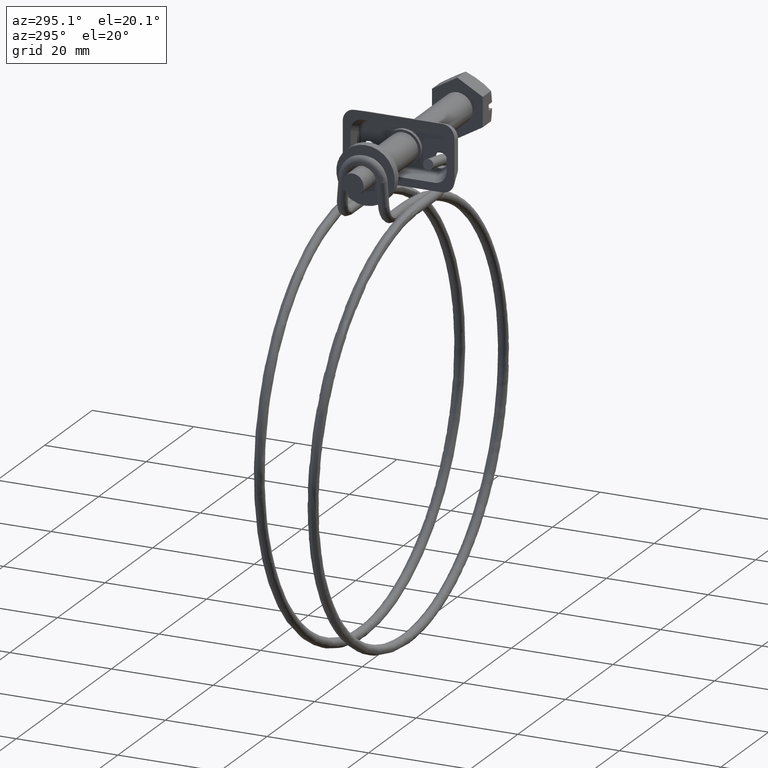
[diagram: clean part render]
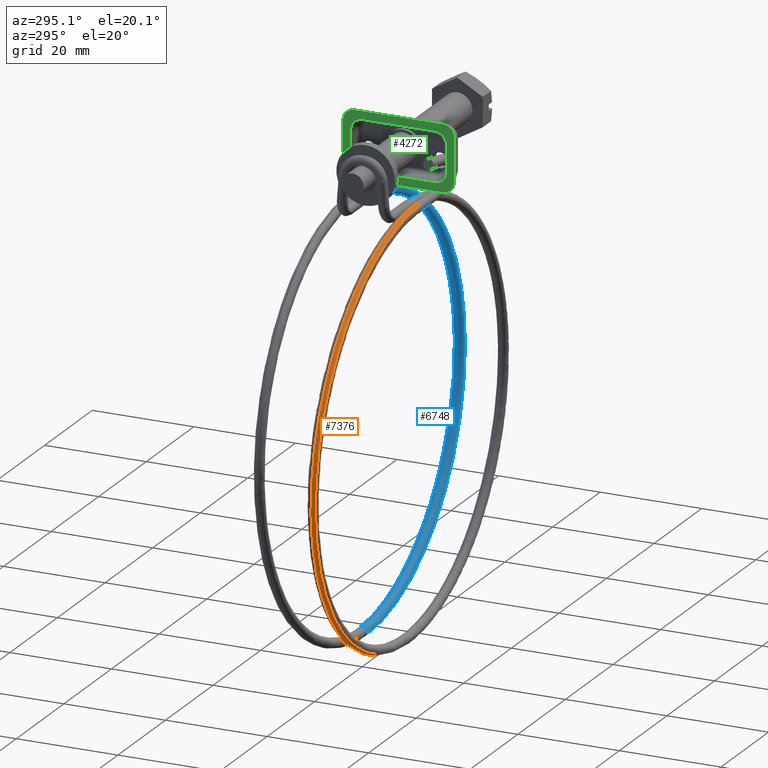
[diagram: same view with three faces highlighted in distinct colors, each labeled with its STEP entity id]
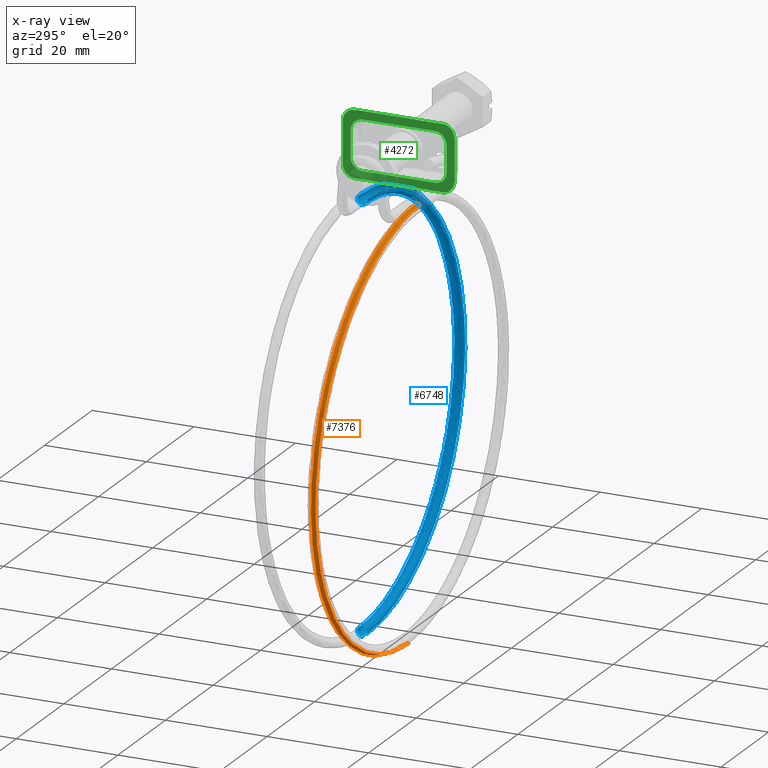
[diagram: x-ray of the same camera — body ghosted, the three highlighted faces saturated]
A machine part, auxiliary view with three faces highlighted in distinct colors.
The next image is the same camera in x-ray (body ghosted, the three faces saturated) — at least one of them is partly hidden behind the body in this view.
Their STEP definitions:

[orange] entity #7376 — the highlighted face is a freeform B-spline surface patch.
#4599=CARTESIAN_POINT('',(-30.849999999999049,-6.358996926632420,-6.851201973787906));
#4600=VERTEX_POINT('',#4599);
#4608=CARTESIAN_POINT('',(-30.849999999999049,-7.071613986342928,-7.202001879862161));
#4609=VERTEX_POINT('',#4608);
#4610=CARTESIAN_POINT('',(-30.849999999999049,-6.358996926632420,-6.851201973787906));
#4611=CARTESIAN_POINT('',(-30.849999999999049,-6.620481900229170,-6.864028822002280));
#4612=CARTESIAN_POINT('',(-30.849999999999049,-6.875076355508851,-6.984420348357491));
#4613=CARTESIAN_POINT('',(-30.849999999999049,-7.057937752888845,-7.186147289623124));
#4614=CARTESIAN_POINT('',(-30.849999999999049,-7.064841796253846,-7.194020395486353));
#4615=CARTESIAN_POINT('',(-30.849999999999049,-7.071613986342928,-7.202001879862161));
#4616=B_SPLINE_CURVE_WITH_KNOTS('',3,(#4610,#4611,#4612,#4613,#4614,#4615),.UNSPECIFIED.,.F.,.U.,(4,2,4),(0.0,0.125000000000000,0.130000310572804),.UNSPECIFIED.);
#4617=EDGE_CURVE('',#4600,#4609,#4616,.T.);
#6125=CARTESIAN_POINT('',(-30.850000000000939,-5.028950649559777,-90.534537033441865));
#6126=VERTEX_POINT('',#6125);
#6138=CARTESIAN_POINT('',(-30.850000000000939,-4.300002000000005,-90.850001000000049));
#6139=VERTEX_POINT('',#6138);
#6140=CARTESIAN_POINT('',(-30.850000000000929,-4.300001999999999,-90.850001000000091));
#6141=CARTESIAN_POINT('',(-30.850000000000929,-4.561801387799146,-90.850001000000091));
#6142=CARTESIAN_POINT('',(-30.850000000000922,-4.821988658763279,-90.742227903609901));
#6143=CARTESIAN_POINT('',(-30.850000000000922,-5.014514046029511,-90.549702516343672));
#6144=CARTESIAN_POINT('',(-30.850000000000922,-5.021795540256347,-90.542177129141734));
#6145=CARTESIAN_POINT('',(-30.850000000000939,-5.028950649559777,-90.534537033441865));
#6146=B_SPLINE_CURVE_WITH_KNOTS('',3,(#6140,#6141,#6142,#6143,#6144,#6145),.UNSPECIFIED.,.F.,.U.,(4,2,4),(0.0,0.125000000000000,0.130000310572690),.UNSPECIFIED.);
#6147=EDGE_CURVE('',#6139,#6126,#6146,.T.);
#7265=CARTESIAN_POINT('',(-30.850000000000939,-5.028950649559777,-90.534537033441865));
#7266=CARTESIAN_POINT('',(-36.305318899030567,-5.028950803611579,-90.534537759588233));
#7267=CARTESIAN_POINT('',(-41.756597362550259,-5.055535354850994,-89.449960368318614));
#7268=CARTESIAN_POINT('',(-51.834657833151638,-5.157864482385008,-85.275339194153190));
#7269=CARTESIAN_POINT('',(-56.456585399139357,-5.233567909034217,-82.186940656105079));
#7270=CARTESIAN_POINT('',(-64.169706932515993,-5.422639004424996,-74.473592392381192));
#7271=CARTESIAN_POINT('',(-67.257870811316991,-5.535932286126398,-69.851677360830465));
#7272=CARTESIAN_POINT('',(-71.432071037497721,-5.782958161060649,-59.774004728269247));
#7273=CARTESIAN_POINT('',(-72.516468437387118,-5.916593645017086,-54.322208798726869));
#7274=CARTESIAN_POINT('',(-72.516468437387118,-6.183969693214051,-43.414330082766533));
#7275=CARTESIAN_POINT('',(-71.432071037513026,-6.317605177179821,-37.962534153169202));
#7276=CARTESIAN_POINT('',(-67.257870811299398,-6.564631052095453,-27.884861520715479));
#7277=CARTESIAN_POINT('',(-64.169706932496084,-6.677924333818284,-23.262946489112501));
#7278=CARTESIAN_POINT('',(-56.456585399157028,-6.866995429184750,-15.549598225388870));
#7279=CARTESIAN_POINT('',(-51.834657833159163,-6.942698855849457,-12.461199687324241));
#7280=CARTESIAN_POINT('',(-41.756597362537647,-7.045027983376782,-8.286578513191776));
#7281=CARTESIAN_POINT('',(-36.305318865696947,-7.071802026515540,-7.202034668699311));
#7282=CARTESIAN_POINT('',(-30.849999999999049,-7.071613986342928,-7.202001879862161));
#7283=B_SPLINE_CURVE_WITH_KNOTS('',3,(#7265,#7266,#7267,#7268,#7269,#7270,#7271,#7272,#7273,#7274,#7275,#7276,#7277,#7278,#7279,#7280,#7281,#7282),.UNSPECIFIED.,.F.,.U.,(4,2,2,2,2,2,2,2,4),(0.746796299225829,0.773394937385420,0.799993575545010,0.826592213704601,0.853190851864191,0.879789490023781,0.906388128183372,0.932986766342962,0.959585404502553),.UNSPECIFIED.);
#7284=EDGE_CURVE('',#6126,#4609,#7283,.T.);
#7290=CARTESIAN_POINT('',(-30.850000000000950,-4.300002000000009,-90.850001000000006));
#7291=CARTESIAN_POINT('',(-36.348961320971647,-4.300002827424925,-90.850001000018310));
#7292=CARTESIAN_POINT('',(-41.843849336140451,-4.326800065912181,-89.756746556423352));
#7293=CARTESIAN_POINT('',(-52.002523341114752,-4.429947715293605,-85.548732948413146));
#7294=CARTESIAN_POINT('',(-56.661415709662897,-4.506256634255218,-82.435632733652142));
#7295=CARTESIAN_POINT('',(-64.436214496779613,-4.696839618940733,-74.660605403252646));
#7296=CARTESIAN_POINT('',(-67.549067002914100,-4.811038692889240,-70.001737652873658));
#7297=CARTESIAN_POINT('',(-71.756635370281899,-5.060039268083110,-59.843505108086852));
#7298=CARTESIAN_POINT('',(-72.849699711466400,-5.194742889161515,-54.348133434688897));
#7299=CARTESIAN_POINT('',(-72.849699711466400,-5.464256037473009,-43.353069539097497));
#7300=CARTESIAN_POINT('',(-71.756635370317994,-5.598959658559590,-37.857697865623848));
#7301=CARTESIAN_POINT('',(-67.549067002875688,-5.847960233737171,-27.699465320986050));
#7302=CARTESIAN_POINT('',(-64.436214496722599,-5.962159307699600,-23.040597570552819));
#7303=CARTESIAN_POINT('',(-56.661415709717687,-6.152742292373481,-15.265570240116030));
#7304=CARTESIAN_POINT('',(-52.002523341102901,-6.229051211344400,-12.152470025373731));
#7305=CARTESIAN_POINT('',(-41.843849336147187,-6.332198860718850,-7.944456417363570));
#7306=CARTESIAN_POINT('',(-36.348961287279543,-6.359186337793259,-6.851235907918861));
#7307=CARTESIAN_POINT('',(-30.849999999999049,-6.358996926632420,-6.851201973787906));
#7308=B_SPLINE_CURVE_WITH_KNOTS('',3,(#7290,#7291,#7292,#7293,#7294,#7295,#7296,#7297,#7298,#7299,#7300,#7301,#7302,#7303,#7304,#7305,#7306,#7307),.UNSPECIFIED.,.F.,.U.,(4,2,2,2,2,2,2,2,4),(0.746796299225829,0.773394937385420,0.799993575545010,0.826592213704601,0.853190851864191,0.879789490023781,0.906388128183372,0.932986766342962,0.959585404502553),.UNSPECIFIED.);
#7309=EDGE_CURVE('',#6139,#4600,#7308,.T.);
#7317=CARTESIAN_POINT('',(-30.190123083374662,-4.295917825471815,-90.850001000007396));
#7318=CARTESIAN_POINT('',(-30.190210627648572,-4.570927623140562,-90.851170057773999));
#7319=CARTESIAN_POINT('',(-30.192168507968280,-4.844580443696140,-90.733262335891624));
#7320=CARTESIAN_POINT('',(-30.195409648490120,-5.031741139738297,-90.531557303955296));
#7321=CARTESIAN_POINT('',(-30.410078927276800,-4.295938438262885,-90.849161378541751));
#7322=CARTESIAN_POINT('',(-30.410137290548040,-4.570948233194306,-90.850330547911895));
#7323=CARTESIAN_POINT('',(-30.411442553532130,-4.844600992585777,-90.732425317558437));
#7324=CARTESIAN_POINT('',(-30.413603329503310,-5.031761587377221,-90.530724409985496));
#7325=CARTESIAN_POINT('',(-36.128689903765938,-4.294845941254329,-90.893764301846119));
#7326=CARTESIAN_POINT('',(-36.127989593459432,-4.569855881087380,-90.894927558063216));
#7327=CARTESIAN_POINT('',(-36.112327532531381,-4.843511882523873,-90.776889969415791));
#7328=CARTESIAN_POINT('',(-36.086400033366587,-5.030677844366587,-90.574969946458282));
#7329=CARTESIAN_POINT('',(-47.341200508019178,-4.349521420811046,-88.663180078317751));
#7330=CARTESIAN_POINT('',(-47.339012673077882,-4.624524106552896,-88.664639274775311));
#7331=CARTESIAN_POINT('',(-47.290082929454613,-4.898017872408857,-88.553220373321992));
#7332=CARTESIAN_POINT('',(-47.209082996346453,-5.084915263970175,-88.362257152740895));
#7333=CARTESIAN_POINT('',(-61.322118602506869,-4.578518036736755,-79.321043388222506));
#7334=CARTESIAN_POINT('',(-61.318076477672413,-4.853490348442129,-79.323741723787393));
#7335=CARTESIAN_POINT('',(-61.227676544824092,-5.126304815990314,-79.240035450020031));
#7336=CARTESIAN_POINT('',(-61.078025474319773,-5.312077674454017,-79.094948637529953));
#7337=CARTESIAN_POINT('',(-70.663450924798724,-4.921197938607599,-65.341064800875060));
#7338=CARTESIAN_POINT('',(-70.658170344853460,-5.196124815136104,-65.345616710933527));
#7339=CARTESIAN_POINT('',(-70.540073034035970,-5.467923149483482,-65.303364634686716));
#7340=CARTESIAN_POINT('',(-70.344570798262353,-5.652013867073378,-65.226902486765496));
#7341=CARTESIAN_POINT('',(-73.942950576602541,-5.325417712907129,-48.850506643159022));
#7342=CARTESIAN_POINT('',(-73.937235326210981,-5.600291009772195,-48.857244390287107));
#7343=CARTESIAN_POINT('',(-73.809416846387734,-5.870891063945456,-48.863877376377410));
#7344=CARTESIAN_POINT('',(-73.597821862488829,-6.052998108485967,-48.868341194634723));
#7345=CARTESIAN_POINT('',(-70.663440175871003,-5.729637104398208,-32.359964102779387));
#7346=CARTESIAN_POINT('',(-70.658159597194839,-6.004456821649943,-32.368887684937619));
#7347=CARTESIAN_POINT('',(-70.540062314834771,-6.273858596764184,-32.424405687906301));
#7348=CARTESIAN_POINT('',(-70.344560126148252,-6.453981970101158,-32.509795397124499));
#7349=CARTESIAN_POINT('',(-61.322120676074690,-6.072330846495651,-18.379956792650091));
#7350=CARTESIAN_POINT('',(-61.318078550996461,-6.347105127613034,-18.390733953254070));
#7351=CARTESIAN_POINT('',(-61.227678612661492,-6.615490748194239,-18.487706234168570));
#7352=CARTESIAN_POINT('',(-61.078027533073758,-6.793931945142680,-18.641720740726939));
#7353=CARTESIAN_POINT('',(-47.341199814241143,-6.301248823418857,-9.037812839550099));
#7354=CARTESIAN_POINT('',(-47.339011979382100,-6.575992735667293,-9.049829138949024));
#7355=CARTESIAN_POINT('',(-47.290082237566033,-6.843699173122807,-9.174514087721983));
#7356=CARTESIAN_POINT('',(-47.209082307478582,-7.021016028846021,-9.374405070878970));
#7357=CARTESIAN_POINT('',(-36.128690015306702,-6.356162432013099,-6.807269031501098));
#7358=CARTESIAN_POINT('',(-36.127989704981772,-6.630899074552404,-6.819581269713790));
#7359=CARTESIAN_POINT('',(-36.112327643803063,-6.898442928290504,-6.950884730276371));
#7360=CARTESIAN_POINT('',(-36.086400144214267,-7.075490633783787,-7.161732219430775));
#7361=CARTESIAN_POINT('',(-30.410078930021669,-6.354881731451876,-6.851838729321413));
#7362=CARTESIAN_POINT('',(-30.410137293293449,-6.629618531234323,-6.864145055668919));
#7363=CARTESIAN_POINT('',(-30.411442556265751,-6.897165902119824,-6.995316300317407));
#7364=CARTESIAN_POINT('',(-30.413603332218688,-7.074219432949702,-7.205944914521849));
#7365=CARTESIAN_POINT('',(-30.190123087415270,-6.354895026897557,-6.850997802611093));
#7366=CARTESIAN_POINT('',(-30.190210631689979,-6.629631824422474,-6.863304240613876));
#7367=CARTESIAN_POINT('',(-30.192168511992371,-6.897179144839361,-6.994477982366891));
#7368=CARTESIAN_POINT('',(-30.195409652487349,-7.074232592235900,-7.205110730347303));
#7369=B_SPLINE_SURFACE_WITH_KNOTS('',3,3,((#7317,#7321,#7325,#7329,#7333,#7337,#7341,#7345,#7349,#7353,#7357,#7361,#7365),(#7318,#7322,#7326,#7330,#7334,#7338,#7342,#7346,#7350,#7354,#7358,#7362,#7366),(#7319,#7323,#7327,#7331,#7335,#7339,#7343,#7347,#7351,#7355,#7359,#7363,#7367),(#7320,#7324,#7328,#7332,#7336,#7340,#7344,#7348,#7352,#7356,#7360,#7364,#7368)),.UNSPECIFIED.,.F.,.F.,.U.,(4,4),(4,1,1,1,1,1,1,1,1,1,4),(0.0,0.825542999931788),(0.0,0.659872351504707,17.156681507852930,33.653490664200604,50.150299820548831,66.647108976896490,83.143918133244043,99.640727289592320,116.137536445939900,132.634345602288190,133.294217953793210),.UNSPECIFIED.);
#7370=ORIENTED_EDGE('',*,*,#4617,.F.);
#7371=ORIENTED_EDGE('',*,*,#7309,.F.);
#7372=ORIENTED_EDGE('',*,*,#6147,.T.);
#7373=ORIENTED_EDGE('',*,*,#7284,.T.);
#7374=EDGE_LOOP('',(#7370,#7371,#7372,#7373));
#7375=FACE_OUTER_BOUND('',#7374,.T.);
#7376=ADVANCED_FACE('',(#7375),#7369,.T.);

[blue] entity #6748 — the highlighted face is a freeform B-spline surface patch.
#5491=CARTESIAN_POINT('',(-30.849997853205629,5.025377348391642,-8.538354545748593));
#5492=VERTEX_POINT('',#5491);
#5493=CARTESIAN_POINT('',(-30.849995428571869,4.300002000000000,-8.850001000000443));
#5494=VERTEX_POINT('',#5493);
#5495=CARTESIAN_POINT('',(-30.849997853205625,5.025377348391642,-8.538354545748593));
#5496=CARTESIAN_POINT('',(-30.849995428571873,4.729636746951607,-8.850001000000443));
#5497=CARTESIAN_POINT('',(-30.849995428571869,4.300002000000000,-8.850001000000443));
#5505=(BOUNDED_CURVE()B_SPLINE_CURVE(2,(#5495,#5496,#5497),.UNSPECIFIED.,.F.,.U.)B_SPLINE_CURVE_WITH_KNOTS((3,3),(0.371049312379004,0.500000000000000),.UNSPECIFIED.)CURVE()GEOMETRIC_REPRESENTATION_ITEM()RATIONAL_B_SPLINE_CURVE((0.853699677237795,0.848924872137914,1.0))REPRESENTATION_ITEM(''));
#5506=EDGE_CURVE('',#5492,#5494,#5505,.T.);
#5508=CARTESIAN_POINT('',(-30.849995273908782,3.364492662609556,-7.496699033329747));
#5509=VERTEX_POINT('',#5508);
#5510=CARTESIAN_POINT('',(-30.849995428571869,4.300002000000000,-8.850001000000443));
#5511=CARTESIAN_POINT('',(-30.849995428571880,3.300001999999999,-8.850001000000443));
#5512=CARTESIAN_POINT('',(-30.849995314286151,3.300002000000000,-7.850001000000450));
#5513=CARTESIAN_POINT('',(-30.849995293424779,3.300002000000000,-7.667464052305784));
#5514=CARTESIAN_POINT('',(-30.849995273908782,3.364492662609556,-7.496699033329747));
#5522=(BOUNDED_CURVE()B_SPLINE_CURVE(2,(#5510,#5511,#5512,#5513,#5514),.UNSPECIFIED.,.F.,.U.)B_SPLINE_CURVE_WITH_KNOTS((3,2,3),(0.500000000000000,0.750000000000000,0.810000000003567),.UNSPECIFIED.)CURVE()GEOMETRIC_REPRESENTATION_ITEM()RATIONAL_B_SPLINE_CURVE((1.0,0.707106781186548,1.0,0.929705627480592,0.893152553772506))REPRESENTATION_ITEM(''));
#5523=EDGE_CURVE('',#5494,#5509,#5522,.T.);
#5525=CARTESIAN_POINT('',(-30.850010984965220,4.300002000001033,-6.850001000004548));
#5526=VERTEX_POINT('',#5525);
#5540=CARTESIAN_POINT('',(-30.850008848260462,4.988355548750894,-7.124625654459109));
#5541=VERTEX_POINT('',#5540);
#5542=CARTESIAN_POINT('',(-30.850010984965220,4.300002000001033,-6.850001000004548));
#5543=CARTESIAN_POINT('',(-30.850010984965223,4.698960725432694,-6.850001000004549));
#5544=CARTESIAN_POINT('',(-30.850008848260465,4.988355548750894,-7.124625654459109));
#5552=(BOUNDED_CURVE()B_SPLINE_CURVE(2,(#5542,#5543,#5544),.UNSPECIFIED.,.F.,.U.)B_SPLINE_CURVE_WITH_KNOTS((3,3),(0.0,0.121049313003398),.UNSPECIFIED.)CURVE()GEOMETRIC_REPRESENTATION_ITEM()RATIONAL_B_SPLINE_CURVE((1.0,0.858181908317110,0.853699677191555))REPRESENTATION_ITEM(''));
#5553=EDGE_CURVE('',#5526,#5541,#5552,.T.);
#5650=CARTESIAN_POINT('',(-30.850008848260455,4.988355548750895,-7.124625654459109));
#5651=CARTESIAN_POINT('',(-30.850006548552091,5.300002000000737,-7.420366255502331));
#5652=CARTESIAN_POINT('',(-30.850003206768552,5.300002000000516,-7.850001000002496));
#5653=CARTESIAN_POINT('',(-30.850000103589139,5.300002000000310,-8.248959723035357));
#5654=CARTESIAN_POINT('',(-30.849997853205625,5.025377348391642,-8.538354545748593));
#5662=(BOUNDED_CURVE()B_SPLINE_CURVE(2,(#5650,#5651,#5652,#5653,#5654),.UNSPECIFIED.,.F.,.U.)B_SPLINE_CURVE_WITH_KNOTS((3,2,3),(0.121049313003398,0.250000000000000,0.371049312379004),.UNSPECIFIED.)CURVE()GEOMETRIC_REPRESENTATION_ITEM()RATIONAL_B_SPLINE_CURVE((0.853699677191554,0.848924872869437,1.0,0.858181909048634,0.853699677237795))REPRESENTATION_ITEM(''));
#5663=EDGE_CURVE('',#5541,#5492,#5662,.T.);
#6610=CARTESIAN_POINT('',(-36.602914556231241,3.373633376353292,-89.825627306813530));
#6611=CARTESIAN_POINT('',(10.827624680924400,3.373633376353290,-96.484801654612525));
#6612=CARTESIAN_POINT('',(10.526688933473828,3.373633376353292,-48.590020174814015));
#6613=CARTESIAN_POINT('',(10.228825920843519,3.373633376353291,-1.184273194934970));
#6614=CARTESIAN_POINT('',(-36.701433258188565,3.373633376353291,-7.888327377552923));
#6615=CARTESIAN_POINT('',(-36.601227300736724,3.369050320365804,-89.813609685145096));
#6616=CARTESIAN_POINT('',(10.815401172204753,3.369050320365806,-96.470830983164305));
#6617=CARTESIAN_POINT('',(10.514553685319919,3.369050320365804,-48.590096423830310));
#6618=CARTESIAN_POINT('',(10.216778032061939,3.369050320365806,-1.198252936916770));
#6619=CARTESIAN_POINT('',(-36.699717108431912,3.369050320365805,-7.900340907079344));
#6620=CARTESIAN_POINT('',(-36.575807109877324,3.300002000002066,-89.632552200087517));
#6621=CARTESIAN_POINT('',(10.631241792884964,3.300002000002066,-96.260348850611521));
#6622=CARTESIAN_POINT('',(10.331724039661534,3.300002000002066,-48.591245191490856));
#6623=CARTESIAN_POINT('',(10.035264542685207,3.300002000002066,-1.408871726125852));
#6624=CARTESIAN_POINT('',(-36.673861596626494,3.300002000002066,-8.081336739926369));
#6625=CARTESIAN_POINT('',(-36.550428116004603,3.300002000002066,-89.451788144093427));
#6626=CARTESIAN_POINT('',(10.447380869683645,3.300002000002066,-96.050207833892884));
#6627=CARTESIAN_POINT('',(10.149190695101611,3.300002000002066,-48.592392097412173));
#6628=CARTESIAN_POINT('',(9.854045221390987,3.300002000002066,-1.619149178029515));
#6629=CARTESIAN_POINT('',(-36.648047987306448,3.300002000002066,-8.262039243625944));
#6630=CARTESIAN_POINT('',(-36.411393283906939,3.300002000002066,-88.461500652774092));
#6631=CARTESIAN_POINT('',(9.440127677740140,3.300002000002066,-94.898983276968679));
#6632=CARTESIAN_POINT('',(9.149210434245472,3.300002000002066,-48.598675241377734));
#6633=CARTESIAN_POINT('',(8.861263630625352,3.300002000002066,-2.771121173687345));
#6634=CARTESIAN_POINT('',(-36.506632182738002,3.300002000002065,-9.251989530366775));
#6635=CARTESIAN_POINT('',(-36.411393283906932,4.300002000002065,-88.461500652774077));
#6636=CARTESIAN_POINT('',(9.440127677740140,4.300002000002064,-94.898983276968664));
#6637=CARTESIAN_POINT('',(9.149210434245472,4.300002000002065,-48.598675241377727));
#6638=CARTESIAN_POINT('',(8.861263630625352,4.300002000002066,-2.771121173687343));
#6639=CARTESIAN_POINT('',(-36.506632182737995,4.300002000002064,-9.251989530366776));
#6640=CARTESIAN_POINT('',(-36.411393283906939,5.300002000002064,-88.461500652774092));
#6641=CARTESIAN_POINT('',(9.440127677740140,5.300002000002064,-94.898983276968679));
#6642=CARTESIAN_POINT('',(9.149210434245472,5.300002000002064,-48.598675241377734));
#6643=CARTESIAN_POINT('',(8.861263630625352,5.300002000002065,-2.771121173687345));
#6644=CARTESIAN_POINT('',(-36.506632182738002,5.300002000002063,-9.251989530366775));
#6645=CARTESIAN_POINT('',(-36.550428116004603,5.300002000002065,-89.451788144093427));
#6646=CARTESIAN_POINT('',(10.447380869683645,5.300002000002065,-96.050207833892884));
#6647=CARTESIAN_POINT('',(10.149190695101611,5.300002000002065,-48.592392097412173));
#6648=CARTESIAN_POINT('',(9.854045221390987,5.300002000002066,-1.619149178029515));
#6649=CARTESIAN_POINT('',(-36.648047987306448,5.300002000002065,-8.262039243625944));
#6650=CARTESIAN_POINT('',(-36.689462948102275,5.300002000002065,-90.442075635412778));
#6651=CARTESIAN_POINT('',(11.454634061627150,5.300002000002064,-97.201432390817104));
#6652=CARTESIAN_POINT('',(11.149170955957747,5.300002000002065,-48.586108953446619));
#6653=CARTESIAN_POINT('',(10.846826812156619,5.300002000002067,-0.467177182371702));
#6654=CARTESIAN_POINT('',(-36.789463791874908,5.300002000002064,-7.272088956885114));
#6655=CARTESIAN_POINT('',(-36.689462948102260,4.288600795465911,-90.442075635412778));
#6656=CARTESIAN_POINT('',(11.454634061627150,4.288600795465911,-97.201432390817104));
#6657=CARTESIAN_POINT('',(11.149170955957750,4.288600795465911,-48.586108953446612));
#6658=CARTESIAN_POINT('',(10.846826812156619,4.288600795465912,-0.467177182371702));
#6659=CARTESIAN_POINT('',(-36.789463791874894,4.288600795465909,-7.272088956885111));
#6660=CARTESIAN_POINT('',(-36.689462948102275,4.277306769915183,-90.442075635412792));
#6661=CARTESIAN_POINT('',(11.454634061627150,4.277306769915183,-97.201432390817089));
#6662=CARTESIAN_POINT('',(11.149170955957750,4.277306769915183,-48.586108953446626));
#6663=CARTESIAN_POINT('',(10.846826812156619,4.277306769915182,-0.467177182371701));
#6664=CARTESIAN_POINT('',(-36.789463791874887,4.277306769915181,-7.272088956885110));
#6672=(BOUNDED_SURFACE()B_SPLINE_SURFACE(2,2,((#6610,#6615,#6620,#6625,#6630,#6635,#6640,#6645,#6650,#6655,#6660),(#6611,#6616,#6621,#6626,#6631,#6636,#6641,#6646,#6651,#6656,#6661),(#6612,#6617,#6622,#6627,#6632,#6637,#6642,#6647,#6652,#6657,#6662),(#6613,#6618,#6623,#6628,#6633,#6638,#6643,#6648,#6653,#6658,#6663),(#6614,#6619,#6624,#6629,#6634,#6639,#6644,#6649,#6654,#6659,#6664)),.UNSPECIFIED.,.F.,.F.,.U.)B_SPLINE_SURFACE_WITH_KNOTS((3,2,3),(3,1,2,2,2,1,3),(0.0,76.873848138523414,153.232738523935890),(0.0,0.026922510425145,0.424567530303319,2.081421779795713,3.738276029288106,5.395130278780499,5.421971722357781),.UNSPECIFIED.)GEOMETRIC_REPRESENTATION_ITEM()RATIONAL_B_SPLINE_SURFACE(((0.888202910457924,0.890677732117389,0.929705627484771,1.0,0.707106781186548,1.0,0.707106781186548,1.0,0.707106781186548,1.004744941692583,1.009489883385166),(0.580651670974443,0.582269555035632,0.607783559091307,0.653737636003782,0.462262315535137,0.653737636003782,0.462262315535137,0.653737636003782,0.462262315535137,0.656839582968867,0.659941529933952),(0.888202910457924,0.890677732117389,0.929705627484771,1.0,0.707106781186548,1.0,0.707106781186548,1.0,0.707106781186548,1.004744941692583,1.009489883385166),(0.582711876090824,0.584335500552303,0.609940030622666,0.656057156793597,0.463902464414718,0.656057156793597,0.463902464414718,0.656057156793597,0.463902464414718,0.659170109749584,0.662283062705572),(0.884110101772981,0.886573519538737,0.925421575696820,0.995392034143602,0.703848457282012,0.995392034143602,0.703848457282012,0.995392034143602,0.703848457282012,1.000115111306875,1.004838188470148)))REPRESENTATION_ITEM('')SURFACE());
#6673=ORIENTED_EDGE('',*,*,#5523,.F.);
#6674=ORIENTED_EDGE('',*,*,#5506,.F.);
#6675=ORIENTED_EDGE('',*,*,#5663,.F.);
#6676=ORIENTED_EDGE('',*,*,#5553,.F.);
#6677=CARTESIAN_POINT('',(-30.850012773898129,4.300002000002066,-90.850000999996155));
#6678=VERTEX_POINT('',#6677);
#6679=CARTESIAN_POINT('',(-30.850012773898129,4.300002000002066,-90.850000999996155));
#6680=CARTESIAN_POINT('',(11.414726396834274,4.300002000002065,-90.850013854414200));
#6681=CARTESIAN_POINT('',(11.149170955957750,4.300002000002065,-48.586108953446612));
#6682=CARTESIAN_POINT('',(10.886931736158626,4.300002000002064,-6.849990083838111));
#6683=CARTESIAN_POINT('',(-30.850010984965227,4.300002000001032,-6.850001000004548));
#6691=(BOUNDED_CURVE()B_SPLINE_CURVE(2,(#6679,#6680,#6681,#6682,#6683),.UNSPECIFIED.,.F.,.U.)B_SPLINE_CURVE_WITH_KNOTS((3,2,3),(-3.821089477175030,-2.0,-0.194543482262195),.UNSPECIFIED.)CURVE()GEOMETRIC_REPRESENTATION_ITEM()RATIONAL_B_SPLINE_CURVE((0.943591771129856,0.684712626292369,1.0,0.687419179037864,0.939189438601650))REPRESENTATION_ITEM(''));
#6692=EDGE_CURVE('',#6678,#5526,#6691,.T.);
#6693=ORIENTED_EDGE('',*,*,#6692,.F.);
#6694=CARTESIAN_POINT('',(-30.849999999999049,5.028950649561814,-90.534537033441850));
#6695=VERTEX_POINT('',#6694);
#6696=CARTESIAN_POINT('',(-30.850012773898129,4.300002000002066,-90.850000999996155));
#6697=CARTESIAN_POINT('',(-30.850008909874511,4.561801387801219,-90.850000999997320));
#6698=CARTESIAN_POINT('',(-30.850004381255260,4.821988658765351,-90.742227903608480));
#6699=CARTESIAN_POINT('',(-30.850000309943830,5.014514046031563,-90.549702516343501));
#6700=CARTESIAN_POINT('',(-30.850000154405102,5.021795540258381,-90.542177129141649));
#6701=CARTESIAN_POINT('',(-30.849999999999049,5.028950649561814,-90.534537033441850));
#6702=B_SPLINE_CURVE_WITH_KNOTS('',3,(#6696,#6697,#6698,#6699,#6700,#6701),.UNSPECIFIED.,.F.,.U.,(4,2,4),(0.0,0.125000000000000,0.130000310572678),.UNSPECIFIED.);
#6703=EDGE_CURVE('',#6678,#6695,#6702,.T.);
#6704=ORIENTED_EDGE('',*,*,#6703,.T.);
#6705=CARTESIAN_POINT('',(-30.849999999999049,4.300002000002067,-88.850000999999992));
#6706=VERTEX_POINT('',#6705);
#6707=CARTESIAN_POINT('',(-30.849999999999049,5.028950649561814,-90.534537033441850));
#6708=CARTESIAN_POINT('',(-30.849999999999049,5.200678828488588,-90.351168804465871));
#6709=CARTESIAN_POINT('',(-30.849999999999049,5.300002000002070,-90.101327761825345));
#6710=CARTESIAN_POINT('',(-30.849999999999049,5.300002000002070,-89.588201612200891));
#6711=CARTESIAN_POINT('',(-30.849999999999049,5.192228903611880,-89.328014341236795));
#6712=CARTESIAN_POINT('',(-30.849999999999049,4.821988658765351,-88.957774096390210));
#6713=CARTESIAN_POINT('',(-30.849999999999049,4.561801387801220,-88.850000999999992));
#6714=CARTESIAN_POINT('',(-30.849999999999049,4.300002000002067,-88.850000999999992));
#6715=B_SPLINE_CURVE_WITH_KNOTS('',3,(#6707,#6708,#6709,#6710,#6711,#6712,#6713,#6714),.UNSPECIFIED.,.F.,.U.,(4,2,2,4),(0.130000310572678,0.250000000000000,0.375000000000000,0.500000000000000),.UNSPECIFIED.);
#6716=EDGE_CURVE('',#6695,#6706,#6715,.T.);
#6717=ORIENTED_EDGE('',*,*,#6716,.T.);
#6718=CARTESIAN_POINT('',(-30.849999999864480,3.364945210154583,-90.203131635906203));
#6719=VERTEX_POINT('',#6718);
#6720=CARTESIAN_POINT('',(-30.849999999999049,4.300002000002067,-88.850000999999992));
#6721=CARTESIAN_POINT('',(-30.849999999986871,4.038161661961732,-88.850016503426176));
#6722=CARTESIAN_POINT('',(-30.849999999967519,3.777909289248898,-88.957814246805668));
#6723=CARTESIAN_POINT('',(-30.849999999925359,3.407527296421545,-89.328108156277750));
#6724=CARTESIAN_POINT('',(-30.849999999902831,3.299678426659591,-89.588324114420274));
#6725=CARTESIAN_POINT('',(-30.849999999877092,3.299591888974549,-89.970530271639163));
#6726=CARTESIAN_POINT('',(-30.849999999870072,3.322352722698206,-90.090572399677228));
#6727=CARTESIAN_POINT('',(-30.849999999864480,3.364945210154583,-90.203131635906203));
#6728=B_SPLINE_CURVE_WITH_KNOTS('',3,(#6720,#6721,#6722,#6723,#6724,#6725,#6726,#6727),.UNSPECIFIED.,.F.,.U.,(4,2,2,4),(0.500000000000000,0.625000000000000,0.750000000000000,0.807474354682574),.UNSPECIFIED.);
#6729=EDGE_CURVE('',#6706,#6719,#6728,.T.);
#6730=ORIENTED_EDGE('',*,*,#6729,.T.);
#6731=CARTESIAN_POINT('',(-30.849999999864476,3.364945210154583,-90.203131635906203));
#6732=CARTESIAN_POINT('',(10.763952140154993,3.364945210141570,-90.203131635774767));
#6733=CARTESIAN_POINT('',(10.502485687883389,3.364717514658453,-48.590087123162846));
#6734=CARTESIAN_POINT('',(10.244284412453046,3.364492662622406,-7.496703729813504));
#6735=CARTESIAN_POINT('',(-30.849995273908785,3.364492662609556,-7.496699033329747));
#6743=(BOUNDED_CURVE()B_SPLINE_CURVE(2,(#6731,#6732,#6733,#6734,#6735),.UNSPECIFIED.,.F.,.U.)B_SPLINE_CURVE_WITH_KNOTS((3,2,3),(-3.821089097923792,-2.0,-0.194543948719120),.UNSPECIFIED.)CURVE()GEOMETRIC_REPRESENTATION_ITEM()RATIONAL_B_SPLINE_CURVE((0.842771303802567,0.611552889420874,0.893152553776853,0.613970267402283,0.838839329373112))REPRESENTATION_ITEM(''));
#6744=EDGE_CURVE('',#6719,#5509,#6743,.T.);
#6745=ORIENTED_EDGE('',*,*,#6744,.T.);
#6746=EDGE_LOOP('',(#6673,#6674,#6675,#6676,#6693,#6704,#6717,#6730,#6745));
#6747=FACE_OUTER_BOUND('',#6746,.T.);
#6748=ADVANCED_FACE('',(#6747),#6672,.T.);

[green] entity #4272 — the highlighted face is a freeform B-spline surface patch.
#3765=CARTESIAN_POINT('',(-38.700000000000003,-9.453835362344231,-2.455375465696455));
#3766=VERTEX_POINT('',#3765);
#3774=CARTESIAN_POINT('',(-38.700000000000003,-7.096346438622450,-4.897999379502131));
#3775=VERTEX_POINT('',#3774);
#3781=CARTESIAN_POINT('',(-38.700000000000003,-9.453835362344169,-2.455375465696495));
#3782=CARTESIAN_POINT('',(-38.699999999999996,-9.453835362344108,-4.897999379502226));
#3783=CARTESIAN_POINT('',(-38.700000000000003,-7.096346438622450,-4.897999379502131));
#3791=(BOUNDED_CURVE()B_SPLINE_CURVE(2,(#3781,#3782,#3783),.UNSPECIFIED.,.F.,.U.)CURVE()GEOMETRIC_REPRESENTATION_ITEM()QUASI_UNIFORM_CURVE()RATIONAL_B_SPLINE_CURVE((1.0,0.736600277350803,1.0))REPRESENTATION_ITEM(''));
#3792=EDGE_CURVE('',#3766,#3775,#3791,.T.);
#3811=CARTESIAN_POINT('',(-38.700000000000003,7.096346438622000,-4.897999379502131));
#3812=VERTEX_POINT('',#3811);
#3820=CARTESIAN_POINT('',(-38.700000000000003,9.453835362344339,-2.455375465696360));
#3821=VERTEX_POINT('',#3820);
#3827=CARTESIAN_POINT('',(-38.700000000000003,7.096346438622005,-4.897999379502140));
#3828=CARTESIAN_POINT('',(-38.699999999999989,9.453835362344405,-4.897999379502303));
#3829=CARTESIAN_POINT('',(-38.700000000000003,9.453835362344339,-2.455375465696360));
#3837=(BOUNDED_CURVE()B_SPLINE_CURVE(2,(#3827,#3828,#3829),.UNSPECIFIED.,.F.,.U.)CURVE()GEOMETRIC_REPRESENTATION_ITEM()QUASI_UNIFORM_CURVE()RATIONAL_B_SPLINE_CURVE((1.0,0.736600277350721,1.0))REPRESENTATION_ITEM(''));
#3838=EDGE_CURVE('',#3812,#3821,#3837,.T.);
#3857=CARTESIAN_POINT('',(-38.700000000000003,9.453835362344339,2.455374465696385));
#3858=VERTEX_POINT('',#3857);
#3865=CARTESIAN_POINT('',(-38.700000000000003,7.096346438622230,4.897998379502161));
#3866=VERTEX_POINT('',#3865);
#3872=CARTESIAN_POINT('',(-38.700000000000003,9.453835362344339,2.455374465696385));
#3873=CARTESIAN_POINT('',(-38.699999999999989,9.453835362344014,4.897998379502210));
#3874=CARTESIAN_POINT('',(-38.700000000000003,7.096346438622204,4.897998379502179));
#3882=(BOUNDED_CURVE()B_SPLINE_CURVE(2,(#3872,#3873,#3874),.UNSPECIFIED.,.F.,.U.)CURVE()GEOMETRIC_REPRESENTATION_ITEM()QUASI_UNIFORM_CURVE()RATIONAL_B_SPLINE_CURVE((1.0,0.736600277350804,1.0))REPRESENTATION_ITEM(''));
#3883=EDGE_CURVE('',#3858,#3866,#3882,.T.);
#3902=CARTESIAN_POINT('',(-38.700000000000003,-7.096346438622230,4.897998379502161));
#3903=VERTEX_POINT('',#3902);
#3910=CARTESIAN_POINT('',(-38.700000000000003,-9.453835362344231,2.455374465696380));
#3911=VERTEX_POINT('',#3910);
#3917=CARTESIAN_POINT('',(-38.700000000000003,-7.096346438622241,4.897998379502179));
#3918=CARTESIAN_POINT('',(-38.700000000000003,-9.453835362344249,4.897998379502205));
#3919=CARTESIAN_POINT('',(-38.700000000000003,-9.453835362344169,2.455374465696290));
#3927=(BOUNDED_CURVE()B_SPLINE_CURVE(2,(#3917,#3918,#3919),.UNSPECIFIED.,.F.,.U.)CURVE()GEOMETRIC_REPRESENTATION_ITEM()QUASI_UNIFORM_CURVE()RATIONAL_B_SPLINE_CURVE((1.0,0.736600277350776,1.0))REPRESENTATION_ITEM(''));
#3928=EDGE_CURVE('',#3903,#3911,#3927,.T.);
#3947=CARTESIAN_POINT('',(-38.700000000000003,-11.0,4.057375086194185));
#3948=VERTEX_POINT('',#3947);
#3955=CARTESIAN_POINT('',(-38.700000000000003,-8.642511158470031,6.500000000000110));
#3956=VERTEX_POINT('',#3955);
#3962=CARTESIAN_POINT('',(-38.700000000000003,-11.0,4.057375086194185));
#3963=CARTESIAN_POINT('',(-38.700000000000003,-10.999999223404537,6.499998007051939));
#3964=CARTESIAN_POINT('',(-38.700000000000003,-8.642511158470031,6.500000000000110));
#3972=(BOUNDED_CURVE()B_SPLINE_CURVE(2,(#3962,#3963,#3964),.UNSPECIFIED.,.F.,.U.)CURVE()GEOMETRIC_REPRESENTATION_ITEM()QUASI_UNIFORM_CURVE()RATIONAL_B_SPLINE_CURVE((1.0,0.736600485733960,1.0))REPRESENTATION_ITEM(''));
#3973=EDGE_CURVE('',#3948,#3956,#3972,.T.);
#3992=CARTESIAN_POINT('',(-38.700000000000003,-8.642511076278339,-6.500000000000000));
#3993=VERTEX_POINT('',#3992);
#4000=CARTESIAN_POINT('',(-38.700000000000003,-11.0,-4.057376086194156));
#4001=VERTEX_POINT('',#4000);
#4007=CARTESIAN_POINT('',(-38.700000000000003,-8.642511076278327,-6.499999999999980));
#4008=CARTESIAN_POINT('',(-38.699999999999996,-10.999999999999945,-6.499999999999979));
#4009=CARTESIAN_POINT('',(-38.700000000000003,-11.0,-4.057376086194156));
#4017=(BOUNDED_CURVE()B_SPLINE_CURVE(2,(#4007,#4008,#4009),.UNSPECIFIED.,.F.,.U.)CURVE()GEOMETRIC_REPRESENTATION_ITEM()QUASI_UNIFORM_CURVE()RATIONAL_B_SPLINE_CURVE((1.0,0.736600277350831,1.0))REPRESENTATION_ITEM(''));
#4018=EDGE_CURVE('',#3993,#4001,#4017,.T.);
#4037=CARTESIAN_POINT('',(-38.700000000000003,11.000000000000121,-4.057376086194106));
#4038=VERTEX_POINT('',#4037);
#4045=CARTESIAN_POINT('',(-38.700000000000003,8.642511076278229,-6.500000000000000));
#4046=VERTEX_POINT('',#4045);
#4052=CARTESIAN_POINT('',(-38.700000000000003,11.000000000000121,-4.057376086194105));
#4053=CARTESIAN_POINT('',(-38.699999999999996,11.000000000000103,-6.499999999999749));
#4054=CARTESIAN_POINT('',(-38.700000000000003,8.642511076278229,-6.500000000000000));
#4062=(BOUNDED_CURVE()B_SPLINE_CURVE(2,(#4052,#4053,#4054),.UNSPECIFIED.,.F.,.U.)CURVE()GEOMETRIC_REPRESENTATION_ITEM()QUASI_UNIFORM_CURVE()RATIONAL_B_SPLINE_CURVE((1.0,0.736600277350816,1.0))REPRESENTATION_ITEM(''));
#4063=EDGE_CURVE('',#4038,#4046,#4062,.T.);
#4082=CARTESIAN_POINT('',(-38.700000000000003,8.642511158470031,6.500000000000110));
#4083=VERTEX_POINT('',#4082);
#4090=CARTESIAN_POINT('',(-38.700000000000003,11.000000000000121,4.057375086194250));
#4091=VERTEX_POINT('',#4090);
#4097=CARTESIAN_POINT('',(-38.700000000000003,8.642511158470031,6.500000000000110));
#4098=CARTESIAN_POINT('',(-38.699999999999996,11.000000345154032,6.500000075788750));
#4099=CARTESIAN_POINT('',(-38.700000000000003,11.000000000000121,4.057375086194250));
#4107=(BOUNDED_CURVE()B_SPLINE_CURVE(2,(#4097,#4098,#4099),.UNSPECIFIED.,.F.,.U.)CURVE()GEOMETRIC_REPRESENTATION_ITEM()QUASI_UNIFORM_CURVE()RATIONAL_B_SPLINE_CURVE((1.0,0.736600200372209,1.0))REPRESENTATION_ITEM(''));
#4108=EDGE_CURVE('',#4083,#4091,#4107,.T.);
#4122=CARTESIAN_POINT('',(-38.700000000000003,9.453835362344339,-2.455375465696360));
#4123=CARTESIAN_POINT('',(-38.700000000000003,9.453835362344339,2.455374465696385));
#4124=QUASI_UNIFORM_CURVE('',1,(#4122,#4123),.UNSPECIFIED.,.F.,.U.);
#4125=EDGE_CURVE('',#3821,#3858,#4124,.T.);
#4139=CARTESIAN_POINT('',(-38.700000000000003,-9.453835362344231,-2.455375465696455));
#4140=CARTESIAN_POINT('',(-38.700000000000003,-9.453835362344231,2.455374465696380));
#4141=QUASI_UNIFORM_CURVE('',1,(#4139,#4140),.UNSPECIFIED.,.F.,.U.);
#4142=EDGE_CURVE('',#3766,#3911,#4141,.T.);
#4155=CARTESIAN_POINT('',(-38.700000000000003,-7.096346438622450,-4.897999379502131));
#4156=CARTESIAN_POINT('',(-38.700000000000003,7.096346438622000,-4.897999379502131));
#4157=QUASI_UNIFORM_CURVE('',1,(#4155,#4156),.UNSPECIFIED.,.F.,.U.);
#4158=EDGE_CURVE('',#3775,#3812,#4157,.T.);
#4199=CARTESIAN_POINT('',(-38.700000000000003,-7.096346438622230,4.897998379502161));
#4200=CARTESIAN_POINT('',(-38.700000000000003,7.096346438622230,4.897998379502161));
#4201=QUASI_UNIFORM_CURVE('',1,(#4199,#4200),.UNSPECIFIED.,.F.,.U.);
#4202=EDGE_CURVE('',#3903,#3866,#4201,.T.);
#4215=CARTESIAN_POINT('',(-38.700000000000003,11.000000000000121,-4.057376086194106));
#4216=CARTESIAN_POINT('',(-38.700000000000003,11.000000000000121,4.057375086194250));
#4217=QUASI_UNIFORM_CURVE('',1,(#4215,#4216),.UNSPECIFIED.,.F.,.U.);
#4218=EDGE_CURVE('',#4038,#4091,#4217,.T.);
#4231=CARTESIAN_POINT('',(-38.700000000000003,-11.0,-4.057376086194156));
#4232=CARTESIAN_POINT('',(-38.700000000000003,-11.0,4.057375086194185));
#4233=QUASI_UNIFORM_CURVE('',1,(#4231,#4232),.UNSPECIFIED.,.F.,.U.);
#4234=EDGE_CURVE('',#4001,#3948,#4233,.T.);
#4239=CARTESIAN_POINT('',(-38.700000000000003,-12.098899957359739,-7.149349974803484));
#4240=CARTESIAN_POINT('',(-38.700000000000003,-12.098899957359739,7.149350323490763));
#4241=CARTESIAN_POINT('',(-38.700000000000003,12.098900547445840,-7.149349974803484));
#4242=CARTESIAN_POINT('',(-38.700000000000003,12.098900547445840,7.149350323490763));
#4243=B_SPLINE_SURFACE_WITH_KNOTS('',1,1,((#4239,#4241),(#4240,#4242)),.UNSPECIFIED.,.F.,.F.,.U.,(2,2),(2,2),(0.0,14.298700298294250),(0.0,24.197800504805581),.UNSPECIFIED.);
#4244=CARTESIAN_POINT('',(-38.700000000000003,-8.642511158470031,6.500000000000110));
#4245=CARTESIAN_POINT('',(-38.700000000000003,8.642511158470031,6.500000000000110));
#4246=QUASI_UNIFORM_CURVE('',1,(#4244,#4245),.UNSPECIFIED.,.F.,.U.);
#4247=EDGE_CURVE('',#3956,#4083,#4246,.T.);
#4248=ORIENTED_EDGE('',*,*,#4247,.T.);
#4249=ORIENTED_EDGE('',*,*,#4108,.T.);
#4250=ORIENTED_EDGE('',*,*,#4218,.F.);
#4251=ORIENTED_EDGE('',*,*,#4063,.T.);
#4252=CARTESIAN_POINT('',(-38.700000000000003,-8.642511076278339,-6.500000000000000));
#4253=CARTESIAN_POINT('',(-38.700000000000003,8.642511076278229,-6.500000000000000));
#4254=QUASI_UNIFORM_CURVE('',1,(#4252,#4253),.UNSPECIFIED.,.F.,.U.);
#4255=EDGE_CURVE('',#3993,#4046,#4254,.T.);
#4256=ORIENTED_EDGE('',*,*,#4255,.F.);
#4257=ORIENTED_EDGE('',*,*,#4018,.T.);
#4258=ORIENTED_EDGE('',*,*,#4234,.T.);
#4259=ORIENTED_EDGE('',*,*,#3973,.T.);
#4260=EDGE_LOOP('',(#4248,#4249,#4250,#4251,#4256,#4257,#4258,#4259));
#4261=FACE_OUTER_BOUND('',#4260,.T.);
#4262=ORIENTED_EDGE('',*,*,#4142,.F.);
#4263=ORIENTED_EDGE('',*,*,#3792,.T.);
#4264=ORIENTED_EDGE('',*,*,#4158,.T.);
#4265=ORIENTED_EDGE('',*,*,#3838,.T.);
#4266=ORIENTED_EDGE('',*,*,#4125,.T.);
#4267=ORIENTED_EDGE('',*,*,#3883,.T.);
#4268=ORIENTED_EDGE('',*,*,#4202,.F.);
#4269=ORIENTED_EDGE('',*,*,#3928,.T.);
#4270=EDGE_LOOP('',(#4262,#4263,#4264,#4265,#4266,#4267,#4268,#4269));
#4271=FACE_BOUND('',#4270,.T.);
#4272=ADVANCED_FACE('',(#4261,#4271),#4243,.T.);